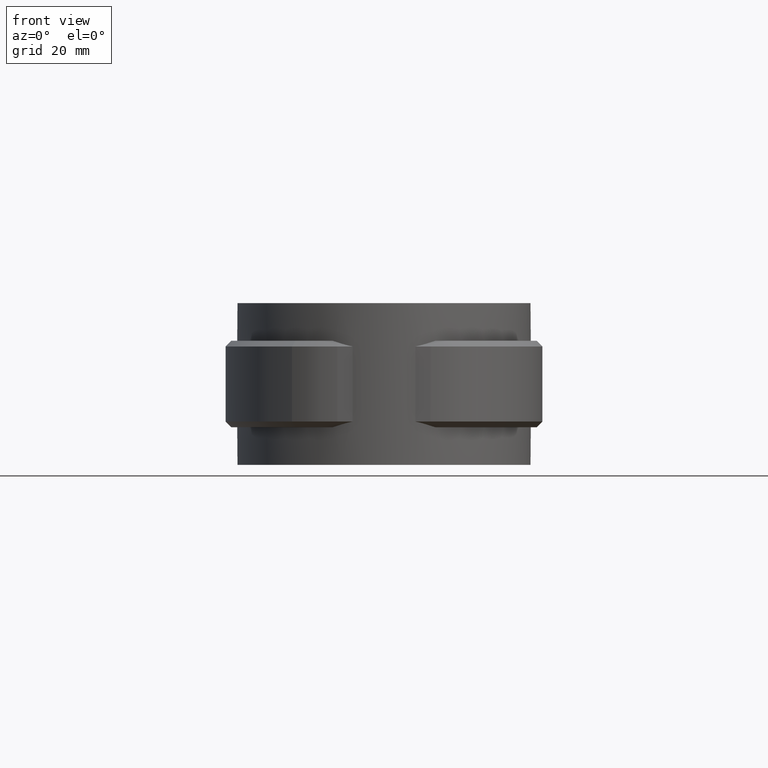
[diagram: clean part render]
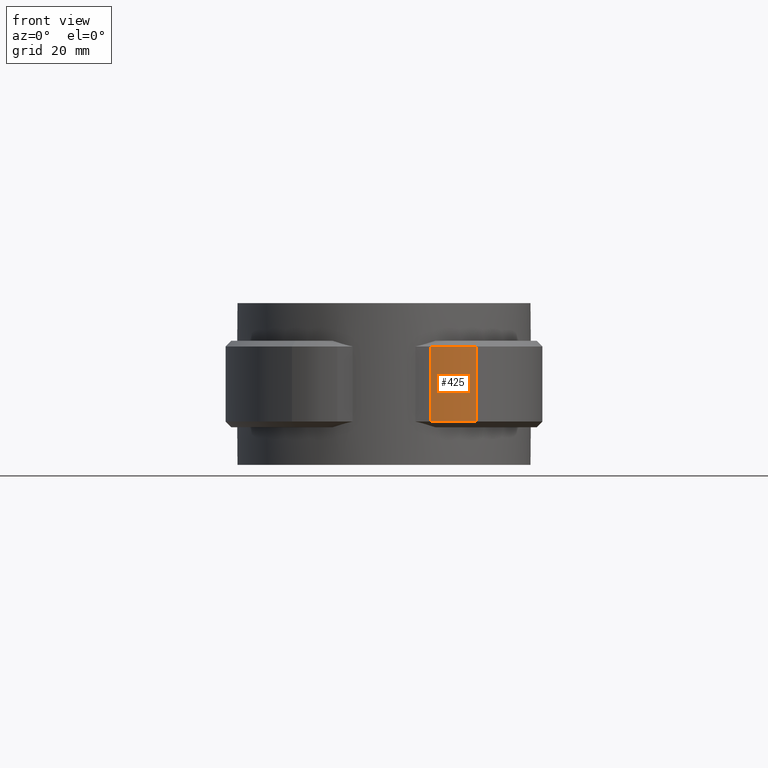
[diagram: same view with one face highlighted and labeled with its STEP entity id]
A machine part, front view. The second image highlights one B-rep face of the part: STEP entity #425.
In plain terms, the highlighted cylindrical surface (partial cylindrical patch) has radius 13.6 mm, axis along (0, 0, -1).
Its self-contained STEP definition (entity closure, byte-faithful):
#425 = ADVANCED_FACE( '', ( #788 ), #789, .T. );
#788 = FACE_OUTER_BOUND( '', #1674, .T. );
#789 = CYLINDRICAL_SURFACE( '', #1675, 13.6000000000000 );
#1674 = EDGE_LOOP( '', ( #4068, #4069, #4070, #4071 ) );
#1675 = AXIS2_PLACEMENT_3D( '', #4072, #4073, #4074 );
#4068 = ORIENTED_EDGE( '', *, *, #5569, .T. );
#4069 = ORIENTED_EDGE( '', *, *, #5516, .T. );
#4070 = ORIENTED_EDGE( '', *, *, #5564, .F. );
#4071 = ORIENTED_EDGE( '', *, *, #5557, .T. );
#4072 = CARTESIAN_POINT( '', ( 8.05583173856056, -11.2600000000000, -20.0000000000000 ) );
#4073 = DIRECTION( '', ( 0.000000000000000, 0.000000000000000, -1.00000000000000 ) );
#4074 = DIRECTION( '', ( 0.213196982952784, 0.977009235606210, 0.000000000000000 ) );
#5516 = EDGE_CURVE( '', #6390, #6387, #6391, .F. );
#5557 = EDGE_CURVE( '', #6463, #6461, #6464, .T. );
#5564 = EDGE_CURVE( '', #6463, #6387, #6472, .T. );
#5569 = EDGE_CURVE( '', #6461, #6390, #6477, .T. );
#6387 = VERTEX_POINT( '', #10010 );
#6390 = VERTEX_POINT( '', #10014 );
#6391 = CIRCLE( '', #10015, 13.6000000000000 );
#6461 = VERTEX_POINT( '', #10127 );
#6463 = VERTEX_POINT( '', #10130 );
#6464 = CIRCLE( '', #10131, 13.6000000000000 );
#6472 = LINE( '', #10142, #10143 );
#6477 = LINE( '', #10149, #10150 );
#10010 = CARTESIAN_POINT( '', ( 8.05583173856056, -24.8600000000000, -6.00000000000000 ) );
#10014 = CARTESIAN_POINT( '', ( 15.9691081303572, -22.3207439508848, -6.00000000000000 ) );
#10015 = AXIS2_PLACEMENT_3D( '', #11139, #11140, #11141 );
#10127 = CARTESIAN_POINT( '', ( 15.9691081303572, -22.3207439508848, -19.0000000000000 ) );
#10130 = CARTESIAN_POINT( '', ( 8.05583173856056, -24.8600000000000, -19.0000000000000 ) );
#10131 = AXIS2_PLACEMENT_3D( '', #11200, #11201, #11202 );
#10142 = CARTESIAN_POINT( '', ( 8.05583173856056, -24.8600000000000, -20.0000000000000 ) );
#10143 = VECTOR( '', #11215, 1000.00000000000 );
#10149 = CARTESIAN_POINT( '', ( 15.9691081303572, -22.3207439508848, -20.0000000000000 ) );
#10150 = VECTOR( '', #11226, 1000.00000000000 );
#11139 = CARTESIAN_POINT( '', ( 8.05583173856056, -11.2600000000000, -6.00000000000000 ) );
#11140 = DIRECTION( '', ( 0.000000000000000, 0.000000000000000, 1.00000000000000 ) );
#11141 = DIRECTION( '', ( 1.00000000000000, 0.000000000000000, 0.000000000000000 ) );
#11200 = CARTESIAN_POINT( '', ( 8.05583173856056, -11.2600000000000, -19.0000000000000 ) );
#11201 = DIRECTION( '', ( 0.000000000000000, 0.000000000000000, 1.00000000000000 ) );
#11202 = DIRECTION( '', ( 1.00000000000000, 0.000000000000000, 0.000000000000000 ) );
#11215 = DIRECTION( '', ( 0.000000000000000, 0.000000000000000, 1.00000000000000 ) );
#11226 = DIRECTION( '', ( 0.000000000000000, 0.000000000000000, 1.00000000000000 ) );